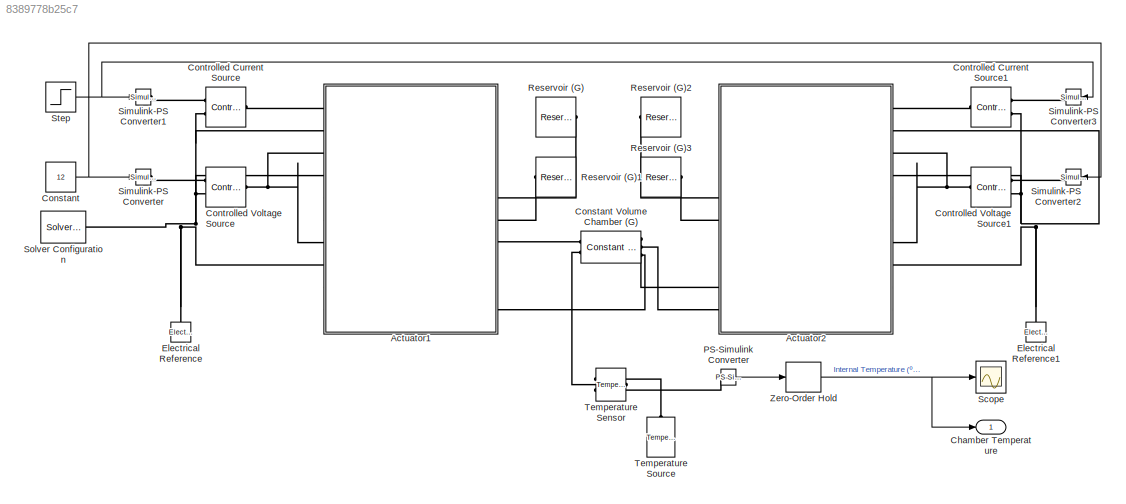
MODEL slx_8389778b25c7
KIND model
CONFIG AbsTol = auto
CONFIG EnableMultiTasking = off
CONFIG FixedStep = auto
CONFIG MaxStep = auto
CONFIG MinStep = auto
CONFIG RelTol = 1e-3
CONFIG SampleTimeConstraint = Unconstrained
CONFIG SolverName = VariableStepAuto
CONFIG StartTime = 0.0
CONFIG StopTime = 10000
BLOCK [SubSystem] Actuator1
  PortSchema = {"entries":[{"content":{"sides":[{"content":{"connectorIds":["LConn1","LConn2","LConn3","LConn4","LConn7","LConn8"]},"type":"ConnectorPlacement.EquallySpacedRectSide","uuid":"d457bfca-5b88-4301-b763-1a1ef357e8f7"},{"content":{"connectorIds":["LConn5","LConn6","LConn9","LConn10"],"side":"RIGHT"},"type":"ConnectorPlacement.EquallySpacedRectSide","uuid":"6d21a9da-5af6-404c-9aaa-5fa645f96412"},{"conte...<+462ch>
  Ports = [0, 0, 0, 0, 0, 10]
  ReferencedSubsystem = Actuator1
  RequestExecContextInheritance = off
BLOCK [SubSystem] Actuator2
  PortSchema = {"entries":[{"content":{"sides":[{"content":{"connectorIds":["LConn1","LConn2","LConn3","LConn4","LConn7","LConn8"]},"type":"ConnectorPlacement.EquallySpacedRectSide","uuid":"d457bfca-5b88-4301-b763-1a1ef357e8f7"},{"content":{"connectorIds":["LConn5","LConn6","LConn9","LConn10"],"side":"RIGHT"},"type":"ConnectorPlacement.EquallySpacedRectSide","uuid":"6d21a9da-5af6-404c-9aaa-5fa645f96412"},{"conte...<+462ch>
  Ports = [0, 0, 0, 0, 0, 10]
  ReferencedSubsystem = Actuator1
  RequestExecContextInheritance = off
BLOCK [Outport] Chamber Temperature
BLOCK [Constant] Constant
  Value = 12
BLOCK [Reference] Constant Volume Chamber (G)  REF=fl_lib/Gas/Elements/Constant Volume
Chamber (G)
  Ports = [0, 0, 0, 0, 0, 2, 3]
  SourceBlock = fl_lib/Gas/Elements/Constant Volume\nChamber (G)
  SourceProductBaseCode = PW,SS,VE
  SourceType = Constant Volume\nChamber (G)
BLOCK [Reference] Controlled Current Source  REF=fl_lib/Electrical/Electrical Sources/Controlled Current
Source
  Ports = [0, 0, 0, 0, 0, 1, 2]
  SourceBlock = fl_lib/Electrical/Electrical Sources/Controlled Current\nSource
  SourceProductBaseCode = PW,SS,VE
  SourceType = Controlled Current\nSource
BLOCK [Reference] Controlled Current Source1  REF=fl_lib/Electrical/Electrical Sources/Controlled Current
Source
  Ports = [0, 0, 0, 0, 0, 1, 2]
  SourceBlock = fl_lib/Electrical/Electrical Sources/Controlled Current\nSource
  SourceProductBaseCode = PW,SS,VE
  SourceType = Controlled Current\nSource
BLOCK [Reference] Controlled Voltage Source  REF=fl_lib/Electrical/Electrical Sources/Controlled Voltage
Source
  Ports = [0, 0, 0, 0, 0, 1, 2]
  SourceBlock = fl_lib/Electrical/Electrical Sources/Controlled Voltage\nSource
  SourceProductBaseCode = PW,SS,VE
  SourceType = Controlled Voltage\nSource
BLOCK [Reference] Controlled Voltage Source1  REF=fl_lib/Electrical/Electrical Sources/Controlled Voltage
Source
  Ports = [0, 0, 0, 0, 0, 1, 2]
  SourceBlock = fl_lib/Electrical/Electrical Sources/Controlled Voltage\nSource
  SourceProductBaseCode = PW,SS,VE
  SourceType = Controlled Voltage\nSource
BLOCK [Reference] Electrical Reference  REF=fl_lib/Electrical/Electrical Elements/Electrical Reference
  NameLocation = right
  Ports = [0, 0, 0, 0, 0, 1]
  SourceBlock = fl_lib/Electrical/Electrical Elements/Electrical Reference
  SourceProductBaseCode = PW,SS,VE
  SourceType = Electrical Reference
BLOCK [Reference] Electrical Reference1  REF=fl_lib/Electrical/Electrical Elements/Electrical Reference
  NameLocation = right
  Ports = [0, 0, 0, 0, 0, 1]
  SourceBlock = fl_lib/Electrical/Electrical Elements/Electrical Reference
  SourceProductBaseCode = PW,SS,VE
  SourceType = Electrical Reference
BLOCK [Reference] PS-Simulink Converter  REF=nesl_utility/PS-Simulink
Converter
  Ports = [0, 1, 0, 0, 0, 1]
  SourceBlock = nesl_utility/PS-Simulink\nConverter
  SourceProductBaseCode = SS,PW,VE
  SourceType = PS-Simulink\nConverter
BLOCK [Reference] Reservoir (G)  REF=fl_lib/Gas/Elements/Reservoir (G)
  NameLocation = top
  Ports = [0, 0, 0, 0, 0, 1]
  SourceBlock = fl_lib/Gas/Elements/Reservoir (G)
  SourceProductBaseCode = PW,SS,VE
  SourceType = Reservoir (G)
BLOCK [Reference] Reservoir (G)1  REF=fl_lib/Gas/Elements/Reservoir (G)
  Ports = [0, 0, 0, 0, 0, 1]
  SourceBlock = fl_lib/Gas/Elements/Reservoir (G)
  SourceProductBaseCode = PW,SS,VE
  SourceType = Reservoir (G)
BLOCK [Reference] Reservoir (G)2  REF=fl_lib/Gas/Elements/Reservoir (G)
  NameLocation = top
  Ports = [0, 0, 0, 0, 0, 1]
  SourceBlock = fl_lib/Gas/Elements/Reservoir (G)
  SourceProductBaseCode = PW,SS,VE
  SourceType = Reservoir (G)
BLOCK [Reference] Reservoir (G)3  REF=fl_lib/Gas/Elements/Reservoir (G)
  Ports = [0, 0, 0, 0, 0, 1]
  SourceBlock = fl_lib/Gas/Elements/Reservoir (G)
  SourceProductBaseCode = PW,SS,VE
  SourceType = Reservoir (G)
BLOCK [Scope] Scope
  Floating = off
  NumInputPorts = 1
  Ports = [1]
  ScopeSpecificationString = Simulink.scopes.TimeScopeBlockCfg('CurrentConfiguration', extmgr.ConfigurationSet(extmgr.Configuration('Core','General UI',true,'FigureColor',[1 1 1]),extmgr.Configuration('Core','Source UI',true),extmgr.Configuration('Sources','WiredSimulink',true),extmgr.Configuration('Visuals','Time Domain',true,'SerializedDisplays',{struct('MinYLimReal','23.0106','MaxYLimReal','62.90459','YLabelReal','','MinYL...<+1582ch>
BLOCK [Reference] Simulink-PS Converter  REF=nesl_utility/Simulink-PS
Converter
  Ports = [1, 0, 0, 0, 0, 0, 1]
  SourceBlock = nesl_utility/Simulink-PS\nConverter
  SourceProductBaseCode = SS,PW,VE
  SourceType = Simulink-PS\nConverter
BLOCK [Reference] Simulink-PS Converter1  REF=nesl_utility/Simulink-PS
Converter
  Ports = [1, 0, 0, 0, 0, 0, 1]
  SourceBlock = nesl_utility/Simulink-PS\nConverter
  SourceProductBaseCode = SS,PW,VE
  SourceType = Simulink-PS\nConverter
BLOCK [Reference] Simulink-PS Converter2  REF=nesl_utility/Simulink-PS
Converter
  Ports = [1, 0, 0, 0, 0, 0, 1]
  SourceBlock = nesl_utility/Simulink-PS\nConverter
  SourceProductBaseCode = SS,PW,VE
  SourceType = Simulink-PS\nConverter
BLOCK [Reference] Simulink-PS Converter3  REF=nesl_utility/Simulink-PS
Converter
  Ports = [1, 0, 0, 0, 0, 0, 1]
  SourceBlock = nesl_utility/Simulink-PS\nConverter
  SourceProductBaseCode = SS,PW,VE
  SourceType = Simulink-PS\nConverter
BLOCK [Reference] Solver Configuration  REF=nesl_utility/Solver
Configuration
  Ports = [0, 0, 0, 0, 0, 0, 1]
  SourceBlock = nesl_utility/Solver\nConfiguration
  SourceProductBaseCode = SS,PW,VE
  SourceType = Solver\nConfiguration
BLOCK [Step] Step
  SampleTime = 0
  Time = 0
BLOCK [Reference] Temperature Sensor  REF=fl_lib/Thermal/Thermal Sensors/Temperature Sensor
  Ports = [0, 0, 0, 0, 0, 1, 2]
  SourceBlock = fl_lib/Thermal/Thermal Sensors/Temperature Sensor
  SourceProductBaseCode = PW,SS,VE
  SourceType = Temperature Sensor
BLOCK [Reference] Temperature Source  REF=fl_lib/Thermal/Thermal Sources/Temperature Source
  NameLocation = right
  Ports = [0, 0, 0, 0, 0, 1]
  SourceBlock = fl_lib/Thermal/Thermal Sources/Temperature Source
  SourceProductBaseCode = PW,SS,VE
  SourceType = Temperature Source
BLOCK [ZeroOrderHold] Zero-Order Hold
  SampleTime = Ts
NET Constant:1 -> Simulink-PS Converter2:1, Simulink-PS Converter:1
LINE PS-Simulink Converter:1 -> Zero-Order Hold:1
NET Step:1 -> Simulink-PS Converter1:1, Simulink-PS Converter3:1
NET Zero-Order Hold:1 -> Chamber Temperature:1, Scope:1
PLINE Actuator1:LConn1 -- Controlled Current Source:LConn1
PLINE Actuator1:LConn10 -- Constant Volume Chamber (G):RConn3
PNET net1: Actuator1:LConn2 -- Actuator1:LConn4 -- Actuator1:LConn8 -- Controlled Current Source:RConn2 -- Controlled Voltage Source:RConn2 -- Electrical Reference:LConn1 -- Solver Configuration:RConn1
PNET net2: Actuator1:LConn3 -- Actuator1:LConn7 -- Controlled Voltage Source:LConn1
PLINE Actuator1:LConn5 -- Reservoir (G):LConn1
PLINE Actuator1:LConn6 -- Reservoir (G)1:LConn1
PLINE Actuator1:LConn9 -- Constant Volume Chamber (G):LConn1
PLINE Actuator2:LConn1 -- Controlled Current Source1:LConn1
PLINE Actuator2:LConn10 -- Constant Volume Chamber (G):RConn2
PNET net3: Actuator2:LConn2 -- Actuator2:LConn4 -- Actuator2:LConn8 -- Controlled Current Source1:RConn2 -- Controlled Voltage Source1:RConn2 -- Electrical Reference1:LConn1
PNET net4: Actuator2:LConn3 -- Actuator2:LConn7 -- Controlled Voltage Source1:LConn1
PLINE Actuator2:LConn5 -- Reservoir (G)2:LConn1
PLINE Actuator2:LConn6 -- Reservoir (G)3:LConn1
PLINE Actuator2:LConn9 -- Constant Volume Chamber (G):RConn1
PLINE Constant Volume Chamber (G):LConn2 -- Temperature Sensor:LConn1
PLINE Controlled Current Source1:RConn1 -- Simulink-PS Converter3:RConn1
PLINE Controlled Current Source:RConn1 -- Simulink-PS Converter1:RConn1
PLINE Controlled Voltage Source1:RConn1 -- Simulink-PS Converter2:RConn1
PLINE Controlled Voltage Source:RConn1 -- Simulink-PS Converter:RConn1
PLINE PS-Simulink Converter:LConn1 -- Temperature Sensor:RConn2
PLINE Temperature Sensor:RConn1 -- Temperature Source:LConn1
note: NET lines group one-source signal fan-out (src -> all destinations, sorted); 1:1 wires keep LINE; PNET lines group multi-terminal physical nets as a canonical sorted terminal list (undirected conserving connections); 2-terminal nets keep the pairwise PLINE form
